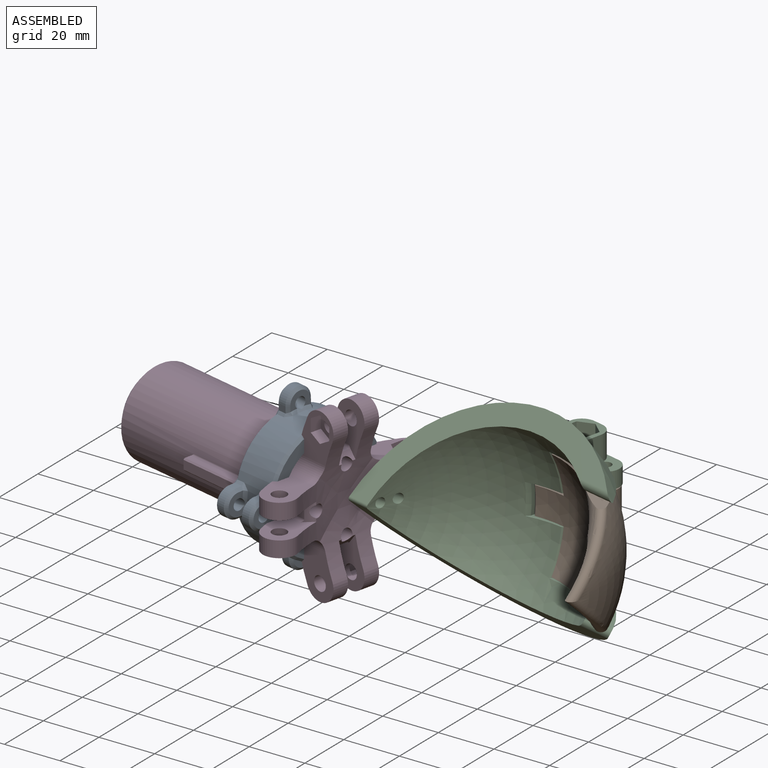
[diagram: assembled view]
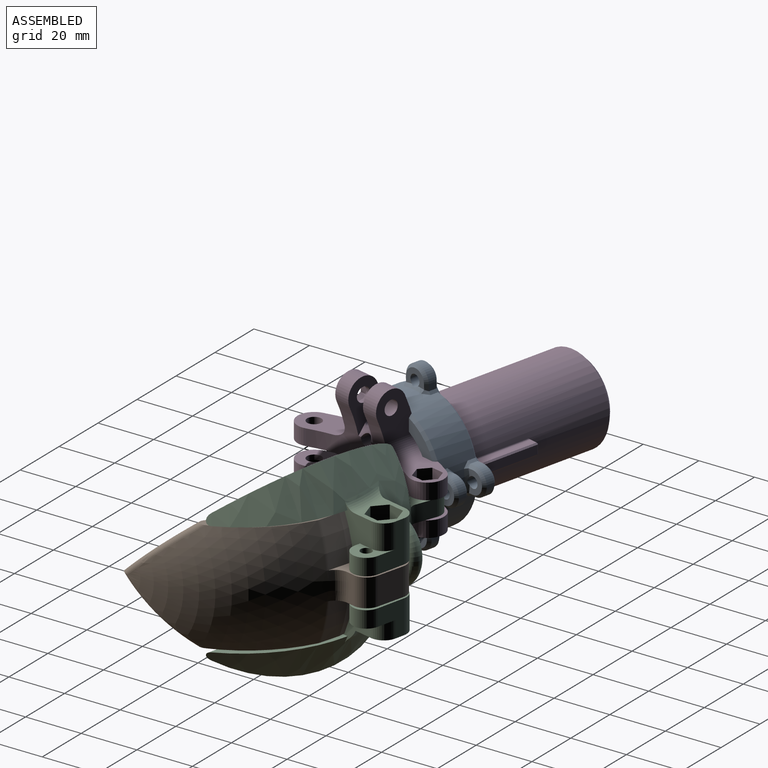
[diagram: assembled view, second angle]
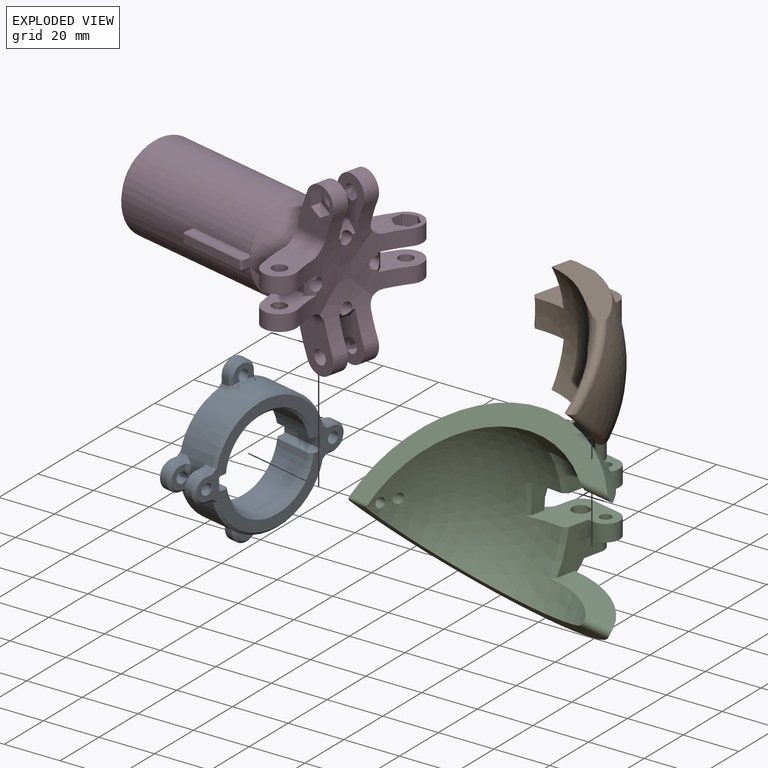
[diagram: exploded view]
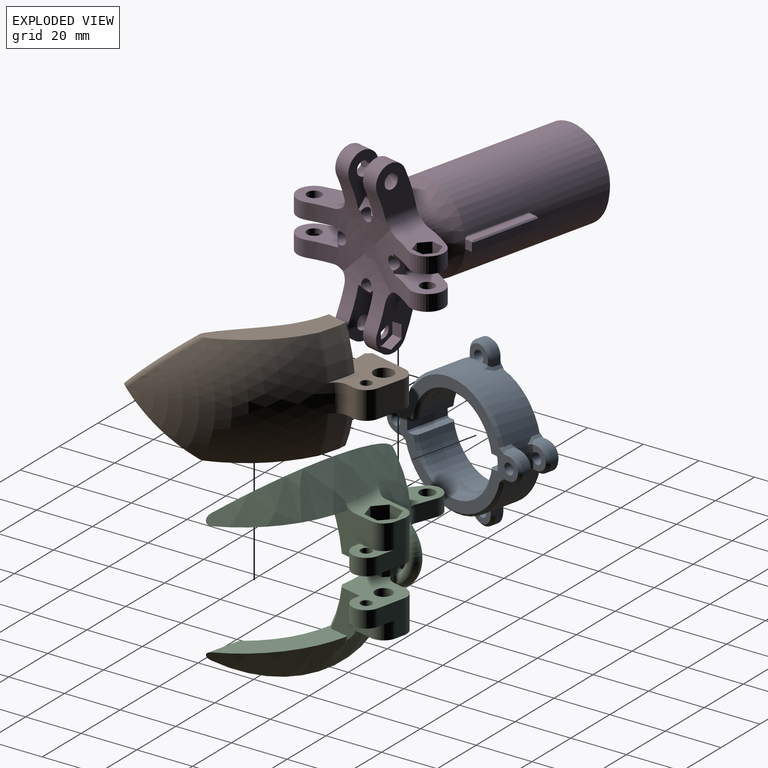
[diagram: exploded view, second angle]
ASSEMBLY  parts=4 mates=3
PART A: 133 faces, bbox 60x60x16 mm
  f0: plane 58x43mm, normal (0,0,1), area 552.8mm2, adj f4,f9,f14,f99,f100,f107,f108,f111
  f1: cylinder r=16.5mm len=32.62mm, axis (0,0,-1), area 655.4mm2, adj f3,f4,f124,f127
  f2: plane 58x58mm, normal (0,0,-1), area 640.6mm2, adj f3,f19,f24,f29,f34,f42,f45,f46
  f3: cone r=17.5mm half-angle=45deg, axis (0,0,-1), area 68.4mm2, adj f1,f2,f124,f127
  f4: cone r=16.5mm half-angle=45deg, axis (0,0,1), area 68.4mm2, adj f0,f1,f124,f127
  f5: cylinder r=22.5mm len=45mm, axis (0,0,-1), area 1654.2mm2, adj f40,f41,f43,f44,f47,f51,f52,f54
  f6: cylinder r=16.5mm len=32.62mm, axis (0,0,-1), area 655.4mm2, adj f121,f122,f123,f128
  f7: plane 3x2.28mm, normal (1,0,0), area 6.8mm2, adj f8,f94,f100,f104
  f8: cylinder r=5mm len=10mm, axis (0,0,1), area 47.1mm2, adj f7,f10,f93,f99
  f9: cylinder r=2mm len=5mm, axis (0,0,1), area 62.8mm2, adj f0,f11,f95
  f10: plane 3x2.28mm, normal (-1,0,0), area 6.8mm2, adj f8,f96,f106,f107
  f11: plane 8x5.84mm, normal (0,0,-1), area 26.4mm2, adj f9,f93,f94,f95,f96
  f12: plane 3x2.28mm, normal (-1,0,0), area 6.8mm2, adj f13,f103,f114,f119
  f13: cylinder r=5mm len=10mm, axis (0,0,1), area 47.1mm2, adj f12,f15,f101,f120
  f14: cylinder r=2mm len=5mm, axis (0,0,1), area 62.8mm2, adj f0,f16,f105
  f15: plane 3x2.28mm, normal (1,0,0), area 6.8mm2, adj f13,f102,f113,f118
  f16: plane 8x5.84mm, normal (0,0,-1), area 26.4mm2, adj f14,f101,f102,f103,f105
  f17: plane 3x2.28mm, normal (1,0,0), area 6.8mm2, adj f18,f49,f51,f64
  f18: cylinder r=5mm len=10mm, axis (0,0,-1), area 47.1mm2, adj f17,f20,f57,f69
  f19: cylinder r=2mm len=5mm, axis (0,0,-1), area 62.8mm2, adj f2,f21,f62
  f20: plane 3x2.28mm, normal (-1,0,0), area 6.8mm2, adj f18,f63,f73,f74
  f21: plane 8x5.84mm, normal (0,0,1), area 26.4mm2, adj f19,f49,f57,f62,f63
  f22: plane 3x2.28mm, normal (0,1,0), area 6.8mm2, adj f23,f39,f46,f47
  f23: cylinder r=5mm len=10mm, axis (0,0,-1), area 47.1mm2, adj f22,f25,f37,f42
  f24: cylinder r=2mm len=5mm, axis (0,0,-1), area 62.8mm2, adj f2,f26,f40
  f25: plane 3x2.28mm, normal (0,-1,0), area 6.8mm2, adj f23,f38,f44,f45
  f26: plane 8x5.84mm, normal (0,0,1), area 26.4mm2, adj f24,f37,f38,f39,f40
  f27: plane 3x2.28mm, normal (-1,0,0), area 6.8mm2, adj f28,f66,f75,f76
  f28: cylinder r=5mm len=10mm, axis (0,0,-1), area 47.1mm2, adj f27,f30,f60,f70
  f29: cylinder r=2mm len=5mm, axis (0,0,-1), area 62.8mm2, adj f2,f31,f67
  f30: plane 3x2.28mm, normal (1,0,0), area 6.8mm2, adj f28,f53,f55,f65
  f31: plane 8x5.84mm, normal (0,0,1), area 26.4mm2, adj f29,f53,f60,f66,f67
  f32: plane 3x2.28mm, normal (0,-1,0), area 6.8mm2, adj f33,f77,f84,f90
  f33: cylinder r=5mm len=10mm, axis (0,0,-1), area 47.1mm2, adj f32,f35,f71,f92
  f34: cylinder r=2mm len=5mm, axis (0,0,-1), area 62.8mm2, adj f2,f36,f78
  f35: plane 3x2.28mm, normal (0,1,0), area 6.8mm2, adj f33,f79,f87,f91
  f36: plane 8x5.84mm, normal (0,0,1), area 26.4mm2, adj f34,f71,f77,f78,f79
  f37: cone r=5mm half-angle=45deg, axis (0,0,-1), area 20mm2, adj f23,f26,f38,f39
  f38: plane 2.28x1mm, normal (0,-0.71,0.71), area 2.9mm2, adj f25,f26,f37,f41
  f39: plane 2.28x1mm, normal (0,0.71,0.71), area 2.9mm2, adj f22,f26,f37,f43
  f40: cone r=22.5mm half-angle=45deg, axis (0,0,-1), area 9.9mm2, adj f5,f24,f26,f41,f43
  f41: bspline ~2x1.92mm, area 2.4mm2, adj f5,f38,f40,f44
  f42: cone r=4mm half-angle=45deg, axis (0,0,1), area 20mm2, adj f2,f23,f45,f46
  f43: bspline ~2x1.92mm, area 2.4mm2, adj f5,f39,f40,f47
  f44: plane 3x0.97mm, normal (0.61,-0.79,0), area 3.7mm2, adj f5,f25,f41,f48
  f45: plane 2.28x1mm, normal (0,-0.71,-0.71), area 3.2mm2, adj f2,f25,f42,f48
  f46: plane 2.28x1mm, normal (0,0.71,-0.71), area 3.2mm2, adj f2,f22,f42,f50
  f47: plane 3x0.97mm, normal (0.61,0.79,0), area 3.7mm2, adj f5,f22,f43,f50
  f48: plane 1.93x1.74mm, normal (0.48,-0.62,-0.62), area 2.3mm2, adj f2,f44,f45,f52
  f49: plane 2.28x1mm, normal (0.71,0,0.71), area 2.9mm2, adj f17,f21,f56,f57
  f50: plane 1.93x1.74mm, normal (0.48,0.62,-0.62), area 2.3mm2, adj f2,f46,f47,f54
  f51: plane 3x0.97mm, normal (0.79,-0.61,0), area 3.7mm2, adj f5,f17,f56,f58
  f52: cone r=22.5mm half-angle=45deg, axis (0,0,1), area 32.8mm2, adj f2,f5,f48,f58
  f53: plane 2.28x1mm, normal (0.71,0,0.71), area 2.9mm2, adj f30,f31,f60,f61
  f54: cone r=22.5mm half-angle=45deg, axis (0,0,1), area 32.8mm2, adj f2,f5,f50,f59
  f55: plane 3x0.97mm, normal (0.79,0.61,0), area 3.7mm2, adj f5,f30,f59,f61
  f56: bspline ~2x1.92mm, area 2.4mm2, adj f5,f49,f51,f62
  f57: cone r=5mm half-angle=45deg, axis (0,0,-1), area 20mm2, adj f18,f21,f49,f63
  f58: plane 1.93x1.74mm, normal (0.62,-0.48,-0.62), area 2.3mm2, adj f2,f51,f52,f64
  f59: plane 1.93x1.74mm, normal (0.62,0.48,-0.62), area 2.3mm2, adj f2,f54,f55,f65
  f60: cone r=5mm half-angle=45deg, axis (0,0,-1), area 20mm2, adj f28,f31,f53,f66
  f61: bspline ~2x1.92mm, area 2.4mm2, adj f5,f53,f55,f67
  f62: cone r=22.5mm half-angle=45deg, axis (0,0,-1), area 9.9mm2, adj f5,f19,f21,f56,f68
  f63: plane 2.28x1mm, normal (-0.71,0,0.71), area 2.9mm2, adj f20,f21,f57,f68
  f64: plane 2.28x1mm, normal (0.71,0,-0.71), area 3.2mm2, adj f2,f17,f58,f69
  f65: plane 2.28x1mm, normal (0.71,0,-0.71), area 3.2mm2, adj f2,f30,f59,f70
  f66: plane 2.28x1mm, normal (-0.71,0,0.71), area 2.9mm2, adj f27,f31,f60,f72
  f67: cone r=22.5mm half-angle=45deg, axis (0,0,-1), area 9.9mm2, adj f5,f29,f31,f61,f72
  f68: bspline ~2x1.92mm, area 2.4mm2, adj f5,f62,f63,f73
  f69: cone r=4mm half-angle=45deg, axis (0,0,1), area 20mm2, adj f2,f18,f64,f74
  f70: cone r=4mm half-angle=45deg, axis (0,0,1), area 20mm2, adj f2,f28,f65,f75
  f71: cone r=5mm half-angle=45deg, axis (0,0,-1), area 20mm2, adj f33,f36,f77,f79
  f72: bspline ~2x1.92mm, area 2.4mm2, adj f5,f66,f67,f76
  f73: plane 3x0.97mm, normal (-0.79,-0.61,0), area 3.7mm2, adj f5,f20,f68,f81
  f74: plane 2.28x1mm, normal (-0.71,0,-0.71), area 3.2mm2, adj f2,f20,f69,f81
  f75: plane 2.28x1mm, normal (-0.71,0,-0.71), area 3.2mm2, adj f2,f27,f70,f82
  f76: plane 3x0.97mm, normal (-0.79,0.61,0), area 3.7mm2, adj f5,f27,f72,f82
  f77: plane 2.28x1mm, normal (0,-0.71,0.71), area 2.9mm2, adj f32,f36,f71,f80
  f78: cone r=22.5mm half-angle=45deg, axis (0,0,-1), area 9.9mm2, adj f5,f34,f36,f80,f83
  f79: plane 2.28x1mm, normal (0,0.71,0.71), area 2.9mm2, adj f35,f36,f71,f83
  f80: bspline ~2x1.92mm, area 2.4mm2, adj f5,f77,f78,f84
  f81: plane 1.93x1.74mm, normal (-0.62,-0.48,-0.62), area 2.3mm2, adj f2,f73,f74,f85
  f82: plane 1.93x1.74mm, normal (-0.62,0.48,-0.62), area 2.3mm2, adj f2,f75,f76,f86
  f83: bspline ~2x1.92mm, area 2.4mm2, adj f5,f78,f79,f87
  f84: plane 3x0.97mm, normal (-0.61,-0.79,0), area 3.7mm2, adj f5,f32,f80,f88
  f85: cone r=22.5mm half-angle=45deg, axis (0,0,1), area 32.8mm2, adj f2,f5,f81,f88
  f86: cone r=22.5mm half-angle=45deg, axis (0,0,1), area 32.8mm2, adj f2,f5,f82,f89
  f87: plane 3x0.97mm, normal (-0.61,0.79,0), area 3.7mm2, adj f5,f35,f83,f89
  f88: plane 1.93x1.74mm, normal (-0.48,-0.62,-0.62), area 2.3mm2, adj f2,f84,f85,f90
  f89: plane 1.93x1.74mm, normal (-0.48,0.62,-0.62), area 2.3mm2, adj f2,f86,f87,f91
  f90: plane 2.28x1mm, normal (0,-0.71,-0.71), area 3.2mm2, adj f2,f32,f88,f92
  f91: plane 2.28x1mm, normal (0,0.71,-0.71), area 3.2mm2, adj f2,f35,f89,f92
  f92: cone r=4mm half-angle=45deg, axis (0,0,1), area 20mm2, adj f2,f33,f90,f91
  f93: cone r=5mm half-angle=45deg, axis (0,0,1), area 20mm2, adj f8,f11,f94,f96
  f94: plane 2.28x1mm, normal (0.71,0,-0.71), area 2.9mm2, adj f7,f11,f93,f97
  f95: cone r=23.5mm half-angle=45deg, axis (0,0,1), area 9.9mm2, adj f5,f9,f11,f97,f98
  f96: plane 2.28x1mm, normal (-0.71,0,-0.71), area 2.9mm2, adj f10,f11,f93,f98
  f97: bspline ~2x1.92mm, area 2.4mm2, adj f5,f94,f95,f104
  f98: bspline ~2x1.92mm, area 2.4mm2, adj f5,f95,f96,f106
  f99: cone r=4mm half-angle=45deg, axis (0,0,-1), area 20mm2, adj f0,f8,f100,f107
  f100: plane 2.28x1mm, normal (0.71,0,0.71), area 3.2mm2, adj f0,f7,f99,f108
  f101: cone r=4mm half-angle=45deg, axis (0,0,1), area 20mm2, adj f13,f16,f102,f103
  f102: plane 2.28x1mm, normal (0.71,0,-0.71), area 2.9mm2, adj f15,f16,f101,f109
  f103: plane 2.28x1mm, normal (-0.71,0,-0.71), area 2.9mm2, adj f12,f16,f101,f110
  f104: plane 3x0.97mm, normal (0.79,0.61,0), area 3.7mm2, adj f5,f7,f97,f108
  f105: cone r=22.5mm half-angle=45deg, axis (0,0,1), area 9.9mm2, adj f5,f14,f16,f109,f110
  f106: plane 3x0.97mm, normal (-0.79,0.61,0), area 3.7mm2, adj f5,f10,f98,f111
  f107: plane 2.28x1mm, normal (-0.71,0,0.71), area 3.2mm2, adj f0,f10,f99,f111
  f108: plane 1.93x1.74mm, normal (0.62,0.48,0.62), area 2.3mm2, adj f0,f100,f104,f112
  f109: bspline ~2x1.92mm, area 2.4mm2, adj f5,f102,f105,f113
  f110: bspline ~2x1.92mm, area 2.4mm2, adj f5,f103,f105,f114
  f111: plane 1.93x1.74mm, normal (-0.62,0.48,0.62), area 2.3mm2, adj f0,f106,f107,f115
  f112: cone r=21.5mm half-angle=45deg, axis (0,0,-1), area 81.7mm2, adj f0,f5,f108,f116
  f113: plane 3x0.97mm, normal (0.79,-0.61,0), area 3.7mm2, adj f5,f15,f109,f116
  f114: plane 3x0.97mm, normal (-0.79,-0.61,0), area 3.7mm2, adj f5,f12,f110,f117
  f115: cone r=21.5mm half-angle=45deg, axis (0,0,-1), area 81.7mm2, adj f0,f5,f111,f117
  f116: plane 1.93x1.74mm, normal (0.62,-0.48,0.62), area 2.3mm2, adj f0,f112,f113,f118
  f117: plane 1.93x1.74mm, normal (-0.62,-0.48,0.62), area 2.3mm2, adj f0,f114,f115,f119
  f118: plane 2.28x1mm, normal (0.71,0,0.71), area 3.2mm2, adj f0,f15,f116,f120
  f119: plane 2.28x1mm, normal (-0.71,0,0.71), area 3.2mm2, adj f0,f12,f117,f120
  f120: cone r=5mm half-angle=45deg, axis (0,0,-1), area 20mm2, adj f0,f13,f118,f119
  f121: cone r=17.5mm half-angle=45deg, axis (0,0,-1), area 68.4mm2, adj f2,f6,f123,f128
  f122: cone r=16.5mm half-angle=45deg, axis (0,0,1), area 68.4mm2, adj f0,f6,f123,f128
  f123: plane 16x3.19mm, normal (1,0,0), area 50mm2, adj f0,f2,f6,f121,f122,f131
  f124: plane 16x3.19mm, normal (-1,0,0), area 50mm2, adj f0,f1,f2,f3,f4,f132
  f125: plane 16x4mm, normal (0,1,0), area 64mm2, adj f0,f2,f131,f132
  f126: plane 16x4mm, normal (0,-1,0), area 64mm2, adj f0,f2,f129,f130
  f127: plane 16x3.19mm, normal (-1,0,0), area 50mm2, adj f0,f1,f2,f3,f4,f129
  f128: plane 16x3.19mm, normal (1,0,0), area 50mm2, adj f0,f2,f6,f121,f122,f130
  f129: plane 16x0.5mm, normal (-0.71,-0.71,0), area 11.3mm2, adj f0,f2,f126,f127
  f130: plane 16x0.5mm, normal (0.71,-0.71,0), area 11.3mm2, adj f0,f2,f126,f128
  f131: plane 16x0.5mm, normal (0.71,0.71,0), area 11.3mm2, adj f0,f2,f123,f125
  f132: plane 16x0.5mm, normal (-0.71,0.71,0), area 11.3mm2, adj f0,f2,f124,f125
PART B: 28 faces, bbox 68.3x60.5x69.5 mm
  f0: cone r=48.87mm half-angle=1.5deg, axis (-1,0,0), area 114.2mm2, adj f6,f9,f21,f27
  f1: sphere r=50mm, area 2062mm2, adj f3,f6,f8,f9,f12,f13,f24,f26
  f2: sphere r=42mm, area 1673.3mm2, adj f3,f4,f5,f6,f8,f9,f10,f11
  f3: plane 24.14x20.92mm, normal (0,0,1), area 286.7mm2, adj f1,f2,f4,f7,f15,f16,f17,f18
  f4: plane 15x11.44mm, normal (-1,0,0), area 104.2mm2, adj f2,f3,f8,f22
  f5: plane 15x11.44mm, normal (-1,0,0), area 104.2mm2, adj f2,f6,f9,f21
  f6: plane 24.14x20.92mm, normal (0,0,-1), area 286.7mm2, adj f0,f1,f2,f5,f7,f15,f16,f17
  f7: plane 14.41x10mm, normal (-1,0,0), area 142.1mm2, adj f3,f6,f19,f25
  f8: plane 38.82x22.55mm, normal (0,0,1), area 333.8mm2, adj f1,f2,f4,f10,f12,f22,f23,f26
  f9: plane 38.82x22.55mm, normal (0,0,-1), area 333.8mm2, adj f0,f1,f2,f5,f11,f13,f21,f27
  f10: torus R=51.04mm, axis (0,0.68,-0.73), area 183.4mm2, adj f2,f8,f12,f14
  f11: torus R=51.04mm, axis (0,0.68,0.73), area 183.5mm2, adj f2,f9,f13,f14
  f12: torus R=47.93mm, axis (0,-0.68,0.73), area 128.7mm2, adj f1,f8,f10,f13
  f13: torus R=47.93mm, axis (0,-0.68,-0.73), area 128.7mm2, adj f1,f9,f11,f12
  f14: cylinder r=22.17mm len=25.3mm, axis (0,0,1), area 330.4mm2, adj f2,f10,f11
  f15: plane 10x10mm, normal (0,1,0), area 100mm2, adj f3,f6,f18,f19
  f16: cylinder r=3.5mm len=10mm, axis (0,0,-1), area 219.9mm2, adj f3,f6
  f17: plane 10x2.57mm, normal (1,0,0), area 24.2mm2, adj f3,f6,f18,f24
  f18: cylinder r=5mm len=10mm, axis (0,0,1), area 78.5mm2, adj f3,f6,f15,f17
  f19: cylinder r=5mm len=10mm, axis (0,0,1), area 78.5mm2, adj f3,f6,f7,f15
  f20: cylinder r=2mm len=10mm, axis (0,0,-1), area 125.7mm2, adj f3,f6
  f21: cone r=49.62mm half-angle=9.2deg, axis (1,0,0), area 43.4mm2, adj f0,f5,f6,f9
  f22: cone r=49.62mm half-angle=9.2deg, axis (1,0,0), area 43.4mm2, adj f3,f4,f8,f23
  f23: cone r=48.87mm half-angle=1.5deg, axis (-1,0,0), area 114.2mm2, adj f3,f8,f22,f26
  f24: torus R=53.66mm, axis (1,0,0), area 63.5mm2, adj f1,f3,f6,f17
  f25: cone r=40.49mm half-angle=37.3deg, axis (-1,0,0), area 23.2mm2, adj f2,f3,f6,f7
  f26: torus R=43.89mm, axis (-1,0,0), area 15.4mm2, adj f1,f3,f8,f23
  f27: torus R=43.89mm, axis (-1,0,0), area 15.4mm2, adj f0,f1,f6,f9
PART C: 68 faces, bbox 93.8x60.8x68.3 mm
  f0: plane 17.69x17.69mm, normal (1,0,0), area 169.6mm2, adj f6,f13,f14,f21,f22,f29,f33,f61
  f1: plane 12.86x7.79mm, normal (-1,0,0), area 69.9mm2, adj f13,f25,f31,f61,f65
  f2: cylinder r=3.05mm len=12mm, axis (0,0,-1), area 230mm2, adj f13,f61
  f3: plane 14.34x13.54mm, normal (0,0,1), area 76.1mm2, adj f5,f10,f16,f17,f26,f30,f32,f42
  f4: cylinder r=3.05mm len=10mm, axis (0,0,-1), area 191.6mm2, adj f11,f48
  f5: torus R=48.73mm, axis (0,0,-1), area 82.1mm2, adj f3,f6,f10,f32,f46,f47
  f6: sphere r=50mm, area 3695mm2, adj f0,f5,f7,f9,f10,f11,f13,f14
  f7: plane 85.56x35.78mm, normal (0,-0.68,0.73), area 826.9mm2, adj f6,f8,f37,f59
  f8: sphere r=42mm, area 2819.8mm2, adj f7,f9,f11,f13,f14,f15,f33,f34
  f9: plane 85.56x35.78mm, normal (0,-0.68,-0.73), area 826.9mm2, adj f6,f8,f38,f59
  f10: plane 17.7x17.69mm, normal (1,0,0), area 193.4mm2, adj f3,f5,f6,f11,f15,f19,f20,f30
  f11: plane 23.87x22.24mm, normal (0,0,-1), area 288.6mm2, adj f4,f6,f8,f10,f12,f16,f17,f20
  f12: plane 11x5.69mm, normal (1,0,0), area 58.6mm2, adj f11,f13,f35,f36
  f13: plane 23.87x22.24mm, normal (0,0,1), area 288.6mm2, adj f0,f1,f2,f6,f8,f12,f18,f22
  f14: plane 38.65x18.56mm, normal (0,0,1), area 319mm2, adj f0,f6,f8,f33,f38
  f15: plane 38.65x18.56mm, normal (0,0,-1), area 319mm2, adj f6,f8,f10,f34,f37
  f16: plane 15x10.5mm, normal (0,1,0), area 94.5mm2, adj f3,f11,f19,f24,f26,f30
  f17: plane 15x8.63mm, normal (-1,0,0), area 93.8mm2, adj f3,f11,f26,f32
  f18: plane 12x10.5mm, normal (0,1,0), area 84mm2, adj f13,f21,f23,f25,f29,f61
  f19: plane 12x10mm, normal (0,0,1), area 52.1mm2, adj f10,f16,f20,f24,f28,f30
  f20: plane 6x2mm, normal (0,-1,0), area 12mm2, adj f10,f11,f19,f24
  f21: plane 12x10mm, normal (0,0,-1), area 52.1mm2, adj f0,f18,f22,f23,f27,f29
  f22: plane 6x2mm, normal (0,-1,0), area 12mm2, adj f0,f13,f21,f23
  f23: cylinder r=5mm len=10mm, axis (0,0,1), area 94.2mm2, adj f13,f18,f21,f22
  f24: cylinder r=5mm len=10mm, axis (0,0,1), area 94.2mm2, adj f11,f16,f19,f20
  f25: cylinder r=5mm len=12mm, axis (0,0,-1), area 94.2mm2, adj f1,f13,f18,f61
  f26: cylinder r=5mm len=15mm, axis (0,0,-1), area 117.8mm2, adj f3,f11,f16,f17
  f27: cylinder r=2mm len=6mm, axis (0,0,-1), area 75.4mm2, adj f13,f21
  f28: cylinder r=2mm len=6mm, axis (0,0,-1), area 75.4mm2, adj f11,f19
  f29: cylinder r=5mm len=6mm, axis (0,0,-1), area 47.1mm2, adj f0,f18,f21,f61
  f30: cylinder r=5mm len=9mm, axis (0,0,-1), area 70.7mm2, adj f3,f10,f16,f19
  f31: torus R=51.61mm, axis (-1,0,0), area 99mm2, adj f1,f6,f13,f62,f65
  f32: torus R=51.61mm, axis (1,0,0), area 101.1mm2, adj f3,f5,f6,f11,f17
  f33: cone r=41.96mm half-angle=46.3deg, axis (1,0,0), area 32.9mm2, adj f0,f8,f13,f14
  f34: cone r=41.96mm half-angle=46.3deg, axis (1,0,0), area 32.9mm2, adj f8,f10,f11,f15
  f35: cone r=40.64mm half-angle=55.4deg, axis (1,0,0), area 18.8mm2, adj f8,f11,f12,f13
  f36: cone r=47.38mm half-angle=35.7deg, axis (-1,0,0), area 26.9mm2, adj f6,f11,f12,f13
  f37: cylinder r=2mm len=13.7mm, axis (1,0,0), area 58.7mm2, adj f6,f7,f8,f15
  f38: cylinder r=2mm len=13.7mm, axis (-1,0,0), area 58.7mm2, adj f6,f8,f9,f14
  f39: torus R=9.66mm, axis (-1,0,0), area 349.8mm2, adj f40,f41
  f40: bspline ~8.83x6.86mm, area 36.5mm2, adj f6,f39
  f41: bspline ~8.83x6.87mm, area 36.5mm2, adj f6,f39
  f42: plane 5.83x5mm, normal (-1,0,0), area 29.2mm2, adj f3,f43,f46,f48
  f43: plane 5.05x5mm, normal (-0.5,-0.87,0), area 29.2mm2, adj f3,f42,f44,f48
  f44: plane 5.05x5mm, normal (0.5,-0.87,0), area 29.2mm2, adj f3,f43,f45,f48
  f45: plane 5.83x5mm, normal (1,0,0), area 29.2mm2, adj f3,f44,f47,f48
  f46: plane 5.05x5mm, normal (-0.5,0.87,0), area 29.2mm2, adj f3,f5,f42,f47,f48
  f47: plane 5.05x5mm, normal (0.5,0.87,0), area 29.2mm2, adj f3,f5,f45,f46,f48
  f48: plane 11.66x10.1mm, normal (0,0,1), area 59.1mm2, adj f4,f42,f43,f44,f45,f46,f47
  f49: plane 7.66x6mm, normal (0.14,0.99,0), area 46mm2, adj f50,f53,f54,f55
  f50: cylinder r=5mm len=9.68mm, axis (0,0,-1), area 87.6mm2, adj f49,f51,f53,f54
  f51: plane 6x3.83mm, normal (-0.48,-0.88,0), area 25.9mm2, adj f50,f53,f54,f56
  f52: cylinder r=2.75mm len=6mm, axis (0,0,-1), area 103.7mm2, adj f53,f54
  f53: plane 16.22x15.43mm, normal (0,0,1), area 100mm2, adj f6,f49,f50,f51,f52,f55,f56
  f54: plane 16.22x15.43mm, normal (0,0,-1), area 100mm2, adj f6,f49,f50,f51,f52,f55,f56
  f55: torus R=46.57mm, axis (-0.14,-0.99,0), area 19.3mm2, adj f6,f49,f53,f54
  f56: torus R=51.78mm, axis (0.48,0.88,0), area 24.3mm2, adj f6,f51,f53,f54
  f57: cylinder r=1.75mm len=8.49mm, axis (1,0,0), area 88.7mm2, adj f6,f8
  f58: cylinder r=1.75mm len=9.19mm, axis (1,0,0), area 91mm2, adj f6,f8
  f59: cylinder r=1mm len=8mm, axis (1,0,0), area 13.1mm2, adj f6,f7,f8,f9
  f60: cylinder r=8mm len=5.99mm, axis (0,0,-1), area 3.4mm2, adj f61,f65,f66,f67
  f61: plane 15x13.5mm, normal (0,0,-1), area 149.5mm2, adj f0,f1,f2,f18,f25,f29,f60,f65
  f62: torus R=48.73mm, axis (0,0,-1), area 16.6mm2, adj f6,f31,f63,f65
  f63: bspline ~11.75x6.31mm, area 14.7mm2, adj f6,f62,f64,f66
  f64: torus R=48.73mm, axis (0,0,-1), area 1.4mm2, adj f0,f6,f63,f67
  f65: bspline ~10.24x6.36mm, area 22mm2, adj f1,f31,f60,f61,f62,f66
  f66: bspline ~10.16x4.05mm, area 30.5mm2, adj f60,f63,f65,f67
  f67: bspline ~8.36x6.27mm, area 10.7mm2, adj f0,f60,f61,f64,f66
PART D: 143 faces, bbox 62.3x88.3x62.3 mm
  f0: cylinder r=16mm len=57mm, axis (0,-1,0), area 5470.4mm2, adj f99,f101,f105,f110,f115,f117,f120,f123
  f1: cylinder r=2.6mm len=5.2mm, axis (0,0,-1), area 28.6mm2, adj f11,f18
  f2: plane 17x15.92mm, normal (0,0,1), area 139.5mm2, adj f4,f5,f8,f12,f13,f14,f15,f16
  f3: plane 17x15.92mm, normal (0,0,-1), area 175.1mm2, adj f4,f5,f6,f7,f74
  f4: cylinder r=66.42mm len=20.93mm, axis (0,0,-1), area 241.6mm2, adj f2,f3,f6,f8,f9,f10,f11,f33
  f5: cylinder r=54.42mm len=22.52mm, axis (0,0,-1), area 261.7mm2, adj f2,f3,f6,f8,f10,f11,f34,f67
  f6: cylinder r=6mm len=11.46mm, axis (0,0,-1), area 108.4mm2, adj f3,f4,f5,f10
  f7: cylinder r=2.6mm len=5.75mm, axis (0,0,-1), area 93.9mm2, adj f3,f10
  f8: cylinder r=6mm len=11.46mm, axis (0,0,-1), area 108.4mm2, adj f2,f4,f5,f11
  f9: plane 9.47x4.5mm, normal (1,0,0), area 42.6mm2, adj f4,f85,f91,f92
  f10: plane 18.77x15.46mm, normal (0,0,1), area 157.7mm2, adj f4,f5,f6,f7,f85,f92
  f11: plane 18.77x15.46mm, normal (0,0,-1), area 157.7mm2, adj f1,f4,f5,f8,f85,f91
  f12: plane 4.68x4mm, normal (0,-1,0), area 18.7mm2, adj f2,f13,f17,f18
  f13: plane 4.05x4mm, normal (0.87,-0.5,0), area 18.7mm2, adj f2,f12,f14,f18
  f14: plane 4.05x4mm, normal (0.87,0.5,0), area 18.7mm2, adj f2,f13,f15,f18
  f15: plane 4.68x4mm, normal (0,1,0), area 18.7mm2, adj f2,f14,f16,f18
  f16: plane 4.05x4mm, normal (-0.87,0.5,0), area 18.7mm2, adj f2,f15,f17,f18
  f17: plane 4.05x4mm, normal (-0.87,-0.5,0), area 18.7mm2, adj f2,f12,f16,f18
  f18: plane 9.35x8.1mm, normal (0,0,1), area 35.6mm2, adj f1,f12,f13,f14,f15,f16,f17
  f19: plane 9.35x8.1mm, normal (1,0,0), area 35.6mm2, adj f20,f21,f22,f23,f24,f25,f26
  f20: cylinder r=2.6mm len=5.2mm, axis (-1,0,0), area 28.6mm2, adj f19,f29
  f21: plane 4.05x4mm, normal (0,0.5,-0.87), area 18.7mm2, adj f19,f22,f26,f36
  f22: plane 4.68x4mm, normal (0,1,0), area 18.7mm2, adj f19,f21,f23,f36
  f23: plane 4.05x4mm, normal (0,0.5,0.87), area 18.7mm2, adj f19,f22,f24,f36
  f24: plane 4.05x4mm, normal (0,-0.5,0.87), area 18.7mm2, adj f19,f23,f25,f36
  f25: plane 4.68x4mm, normal (0,-1,0), area 18.7mm2, adj f19,f24,f26,f36
  f26: plane 4.05x4mm, normal (0,-0.5,-0.87), area 18.7mm2, adj f19,f21,f25,f36
  f27: cylinder r=2.6mm len=5.75mm, axis (-1,0,0), area 93.9mm2, adj f31,f35
  f28: cylinder r=6mm len=11.46mm, axis (-1,0,0), area 108.4mm2, adj f29,f33,f34,f36
  f29: plane 18.77x15.46mm, normal (-1,0,0), area 157.7mm2, adj f20,f28,f33,f34,f84,f87
  f30: plane 9.47x4.5mm, normal (0,0,-1), area 42.6mm2, adj f33,f84,f87,f88
  f31: plane 18.77x15.46mm, normal (1,0,0), area 157.7mm2, adj f27,f32,f33,f34,f84,f88
  f32: cylinder r=6mm len=11.46mm, axis (-1,0,0), area 108.4mm2, adj f31,f33,f34,f35
  f33: cylinder r=66.42mm len=20.93mm, axis (-1,0,0), area 241.6mm2, adj f4,f28,f29,f30,f31,f32,f35,f36
  f34: cylinder r=54.42mm len=22.52mm, axis (-1,0,0), area 261.7mm2, adj f5,f28,f29,f31,f32,f35,f36,f52
  f35: plane 17x15.92mm, normal (-1,0,0), area 175.1mm2, adj f27,f32,f33,f34,f76
  f36: plane 17x15.92mm, normal (1,0,0), area 139.5mm2, adj f21,f22,f23,f24,f25,f26,f28,f33
  f37: plane 9.35x8.1mm, normal (0,0,-1), area 35.6mm2, adj f38,f40,f41,f42,f43,f44,f45
  f38: cylinder r=2.6mm len=5.2mm, axis (0,0,-1), area 28.6mm2, adj f37,f47
  f39: cylinder r=2.6mm len=5.75mm, axis (0,0,-1), area 93.9mm2, adj f49,f54
  f40: plane 4.05x4mm, normal (0.87,0.5,0), area 18.7mm2, adj f37,f41,f45,f53
  f41: plane 4.05x4mm, normal (0.87,-0.5,0), area 18.7mm2, adj f37,f40,f42,f53
  f42: plane 4.68x4mm, normal (0,-1,0), area 18.7mm2, adj f37,f41,f43,f53
  f43: plane 4.05x4mm, normal (-0.87,-0.5,0), area 18.7mm2, adj f37,f42,f44,f53
  f44: plane 4.05x4mm, normal (-0.87,0.5,0), area 18.7mm2, adj f37,f43,f45,f53
  f45: plane 4.68x4mm, normal (0,1,0), area 18.7mm2, adj f37,f40,f44,f53
  f46: cylinder r=6mm len=11.46mm, axis (0,0,-1), area 108.4mm2, adj f47,f51,f52,f53
  f47: plane 18.77x15.46mm, normal (0,0,1), area 157.7mm2, adj f38,f46,f51,f52,f83,f94
  f48: plane 9.47x4.5mm, normal (-1,0,0), area 42.6mm2, adj f51,f83,f93,f94
  f49: plane 18.77x15.46mm, normal (0,0,-1), area 157.7mm2, adj f39,f50,f51,f52,f83,f93
  f50: cylinder r=6mm len=11.46mm, axis (0,0,-1), area 108.4mm2, adj f49,f51,f52,f54
  f51: cylinder r=66.42mm len=20.93mm, axis (0,0,-1), area 241.6mm2, adj f33,f46,f47,f48,f49,f50,f53,f54
  f52: cylinder r=54.42mm len=22.52mm, axis (0,0,-1), area 261.7mm2, adj f34,f46,f47,f49,f50,f53,f54,f67
  f53: plane 17x15.92mm, normal (0,0,-1), area 139.5mm2, adj f40,f41,f42,f43,f44,f45,f46,f51
  f54: plane 17x15.92mm, normal (0,0,1), area 175.1mm2, adj f39,f50,f51,f52,f75
  f55: plane 9.35x8.1mm, normal (-1,0,0), area 35.6mm2, adj f56,f57,f58,f59,f60,f61,f71
  f56: plane 4.05x4mm, normal (0,0.5,0.87), area 18.7mm2, adj f55,f57,f61,f70
  f57: plane 4.05x4mm, normal (0,-0.5,0.87), area 18.7mm2, adj f55,f56,f58,f70
  f58: plane 4.68x4mm, normal (0,-1,0), area 18.7mm2, adj f55,f57,f59,f70
  f59: plane 4.05x4mm, normal (0,-0.5,-0.87), area 18.7mm2, adj f55,f58,f60,f70
  f60: plane 4.05x4mm, normal (0,0.5,-0.87), area 18.7mm2, adj f55,f59,f61,f70
  f61: plane 4.68x4mm, normal (0,1,0), area 18.7mm2, adj f55,f56,f60,f70
  f62: plane 18.77x15.46mm, normal (-1,0,0), area 157.7mm2, adj f66,f67,f68,f69,f82,f89
  f63: plane 18.77x15.46mm, normal (1,0,0), area 157.7mm2, adj f65,f67,f69,f71,f82,f90
  f64: plane 9.47x4.5mm, normal (0,0,1), area 42.6mm2, adj f69,f82,f89,f90
  f65: cylinder r=6mm len=11.46mm, axis (-1,0,0), area 108.4mm2, adj f63,f67,f69,f70
  f66: cylinder r=2.6mm len=5.75mm, axis (-1,0,0), area 93.9mm2, adj f62,f72
  f67: cylinder r=54.42mm len=22.52mm, axis (-1,0,0), area 261.7mm2, adj f5,f52,f62,f63,f65,f68,f70,f72
  f68: cylinder r=6mm len=11.46mm, axis (-1,0,0), area 108.4mm2, adj f62,f67,f69,f72
  f69: cylinder r=66.42mm len=20.93mm, axis (-1,0,0), area 241.6mm2, adj f4,f51,f62,f63,f64,f65,f68,f70
  f70: plane 17x15.92mm, normal (-1,0,0), area 139.5mm2, adj f56,f57,f58,f59,f60,f61,f65,f67
  f71: cylinder r=2.6mm len=5.2mm, axis (-1,0,0), area 28.6mm2, adj f55,f63
  f72: plane 17x15.92mm, normal (1,0,0), area 175.1mm2, adj f66,f67,f68,f69,f73
  f73: cylinder r=5mm len=13mm, axis (0,-1,0), area 96.3mm2, adj f2,f4,f5,f67,f69,f72
  f74: cylinder r=5mm len=13mm, axis (0,1,0), area 96.3mm2, adj f3,f4,f5,f33,f34,f36
  f75: cylinder r=5mm len=13mm, axis (0,1,0), area 96.3mm2, adj f51,f52,f54,f67,f69,f70
  f76: cylinder r=5mm len=13mm, axis (0,-1,0), area 96.3mm2, adj f33,f34,f35,f51,f52,f53
  f77: cylinder r=9mm len=18mm, axis (0,1,0), area 20.8mm2, adj f78,f79,f80,f81,f100
  f78: bspline ~18.37x5.95mm, area 58mm2, adj f4,f77,f79,f80,f86
  f79: bspline ~18.37x5.95mm, area 58mm2, adj f33,f77,f78,f81,f95
  f80: bspline ~18.37x5.95mm, area 58mm2, adj f69,f77,f78,f81,f97
  f81: bspline ~18.37x5.95mm, area 58mm2, adj f51,f77,f79,f80,f96
  f82: plane 6.83x4.1mm, normal (0,-0.78,0.62), area 17.5mm2, adj f62,f63,f64,f67,f89,f90,f97
  f83: plane 6.83x4.1mm, normal (-0.62,-0.78,0), area 17.5mm2, adj f47,f48,f49,f52,f93,f94,f96
  f84: plane 6.83x4.1mm, normal (0,-0.78,-0.62), area 17.5mm2, adj f29,f30,f31,f34,f87,f88,f95
  f85: plane 6.83x4.1mm, normal (0.62,-0.78,0), area 17.5mm2, adj f5,f9,f10,f11,f86,f91,f92
  f86: cylinder r=2.25mm len=14.15mm, axis (0,1,0), area 175.8mm2, adj f4,f5,f78,f85
  f87: cylinder r=1mm len=9.47mm, axis (0,-1,0), area 14.1mm2, adj f29,f30,f33,f84
  f88: cylinder r=1mm len=9.47mm, axis (0,1,0), area 14.1mm2, adj f30,f31,f33,f84
  f89: cylinder r=1mm len=9.47mm, axis (0,-1,0), area 14.1mm2, adj f62,f64,f69,f82
  f90: cylinder r=1mm len=9.47mm, axis (0,1,0), area 14.1mm2, adj f63,f64,f69,f82
  f91: cylinder r=1mm len=9.47mm, axis (0,-1,0), area 14.1mm2, adj f4,f9,f11,f85
  f92: cylinder r=1mm len=9.47mm, axis (0,1,0), area 14.1mm2, adj f4,f9,f10,f85
  f93: cylinder r=1mm len=9.47mm, axis (0,-1,0), area 14.1mm2, adj f48,f49,f51,f83
  f94: cylinder r=1mm len=9.47mm, axis (0,1,0), area 14.1mm2, adj f47,f48,f51,f83
  f95: cylinder r=2.25mm len=14.15mm, axis (0,1,0), area 175.8mm2, adj f33,f34,f79,f84
  f96: cylinder r=2.25mm len=14.15mm, axis (0,1,0), area 175.8mm2, adj f51,f52,f81,f83
  f97: cylinder r=2.25mm len=14.15mm, axis (0,1,0), area 172.8mm2, adj f67,f69,f80,f82
  f98: plane 28x28mm, normal (0,1,0), area 388.8mm2, adj f101,f102
  f99: cone r=16mm half-angle=45deg, axis (0,1,0), area 599.8mm2, adj f0,f100,f109,f114
  f100: torus R=14mm, axis (0,1,0), area 282.2mm2, adj f77,f99
  f101: cone r=14mm half-angle=45deg, axis (0,-1,0), area 266.6mm2, adj f0,f98
  f102: cylinder r=8.5mm len=53mm, axis (0,1,0), area 2830.6mm2, adj f98,f104
  f103: plane 11x11mm, normal (0,1,0), area 95mm2, adj f104
  f104: cone r=5.5mm half-angle=45deg, axis (0,1,0), area 186.6mm2, adj f102,f103
  f105: plane 3.2x3.08mm, normal (0,1,0), area 9.7mm2, adj f0,f127,f131,f132
  f106: plane 25x2.71mm, normal (-1,0,0), area 67.7mm2, adj f127,f129,f130,f139
  f107: plane 25x2.71mm, normal (1,0,0), area 67.7mm2, adj f132,f136,f138,f140
  f108: plane 25x3.2mm, normal (0,0,1), area 80mm2, adj f130,f131,f135,f136
  f109: plane 3.2x3.08mm, normal (0,-1,0), area 9.7mm2, adj f99,f129,f135,f138
  f110: plane 3.2x3.08mm, normal (0,1,0), area 9.7mm2, adj f0,f120,f123,f126
  f111: plane 25x2.71mm, normal (-1,0,0), area 67.7mm2, adj f115,f120,f121,f141
  f112: plane 25x2.71mm, normal (1,0,0), area 67.7mm2, adj f117,f122,f123,f142
  f113: plane 25x3.2mm, normal (0,0,-1), area 80mm2, adj f116,f121,f122,f126
  f114: plane 3.2x3.08mm, normal (0,-1,0), area 9.7mm2, adj f99,f115,f116,f117
  f115: plane 3.38x1.1mm, normal (-0.71,-0.71,0), area 2.3mm2, adj f0,f111,f114,f118,f141
  f116: plane 3.2x0.5mm, normal (0,-0.71,-0.71), area 2.3mm2, adj f113,f114,f118,f119
  f117: plane 3.38x1.1mm, normal (0.71,-0.71,0), area 2.3mm2, adj f0,f112,f114,f119,f142
  f118: plane 0.5x0.5mm, normal (-0.58,-0.58,-0.58), area 0.2mm2, adj f115,f116,f121
  f119: plane 0.5x0.5mm, normal (0.58,-0.58,-0.58), area 0.2mm2, adj f116,f117,f122
  f120: plane 3.38x1.1mm, normal (-0.71,0.71,0), area 2.3mm2, adj f0,f110,f111,f124,f141
  f121: plane 25x0.5mm, normal (-0.71,0,-0.71), area 17.7mm2, adj f111,f113,f118,f124
  f122: plane 25x0.5mm, normal (0.71,0,-0.71), area 17.7mm2, adj f112,f113,f119,f125
  f123: plane 3.38x1.1mm, normal (0.71,0.71,0), area 2.3mm2, adj f0,f110,f112,f125,f142
  f124: plane 0.5x0.5mm, normal (-0.58,0.58,-0.58), area 0.2mm2, adj f120,f121,f126
  f125: plane 0.5x0.5mm, normal (0.58,0.58,-0.58), area 0.2mm2, adj f122,f123,f126
  f126: plane 3.2x0.5mm, normal (0,0.71,-0.71), area 2.3mm2, adj f110,f113,f124,f125
  f127: plane 3.38x1.1mm, normal (-0.71,0.71,0), area 2.3mm2, adj f0,f105,f106,f128,f139
  f128: plane 0.5x0.5mm, normal (-0.58,0.58,0.58), area 0.2mm2, adj f127,f130,f131
  f129: plane 3.38x1.1mm, normal (-0.71,-0.71,0), area 2.3mm2, adj f0,f106,f109,f133,f139
  f130: plane 25x0.5mm, normal (-0.71,0,0.71), area 17.7mm2, adj f106,f108,f128,f133
  f131: plane 3.2x0.5mm, normal (0,0.71,0.71), area 2.3mm2, adj f105,f108,f128,f134
  f132: plane 3.38x1.1mm, normal (0.71,0.71,0), area 2.3mm2, adj f0,f105,f107,f134,f140
  f133: plane 0.5x0.5mm, normal (-0.58,-0.58,0.58), area 0.2mm2, adj f129,f130,f135
  f134: plane 0.5x0.5mm, normal (0.58,0.58,0.58), area 0.2mm2, adj f131,f132,f136
  f135: plane 3.2x0.5mm, normal (0,-0.71,0.71), area 2.3mm2, adj f108,f109,f133,f137
  f136: plane 25x0.5mm, normal (0.71,0,0.71), area 17.7mm2, adj f107,f108,f134,f137
  f137: plane 0.5x0.5mm, normal (0.58,-0.58,0.58), area 0.2mm2, adj f135,f136,f138
  f138: plane 3.38x1.1mm, normal (0.71,-0.71,0), area 2.3mm2, adj f0,f107,f109,f137,f140
  f139: cylinder r=0.5mm len=25mm, axis (0,-1,0), area 17.4mm2, adj f0,f106,f127,f129
  f140: cylinder r=0.5mm len=25mm, axis (0,-1,0), area 17.4mm2, adj f0,f107,f132,f138
  f141: cylinder r=0.5mm len=25mm, axis (0,-1,0), area 17.4mm2, adj f0,f111,f115,f120
  f142: cylinder r=0.5mm len=25mm, axis (0,-1,0), area 17.4mm2, adj f0,f112,f117,f123
PLACE A rot(axis=(0.13,0.99,-0.1),90.6deg) t=(-93.44,-22.37,17.77)mm
PLACE B rot(axis=(0,0,-1),14deg) t=(-22.53,-38.29,17.77)mm
PLACE C rot(axis=(0,0,-1),12.8deg) t=(-20.7,-38.58,17.77)mm fixed
PLACE D rot(axis=(-0.53,0.67,0.53),112.7deg) t=(-71.05,-27.62,17.77)mm fixed
MATE revolute D.f66 <-> C.f50  axis (0,0,1) through (-65.34,-3.29,14.52)mm
MATE revolute B.f16 <-> C.f2  axis (0,0,1) through (-15.8,15.68,22.77)mm
MATE revolute A.f1 <-> D.f0  axis (-0.97,0.23,0) through (-93.44,-22.37,17.77)mm
